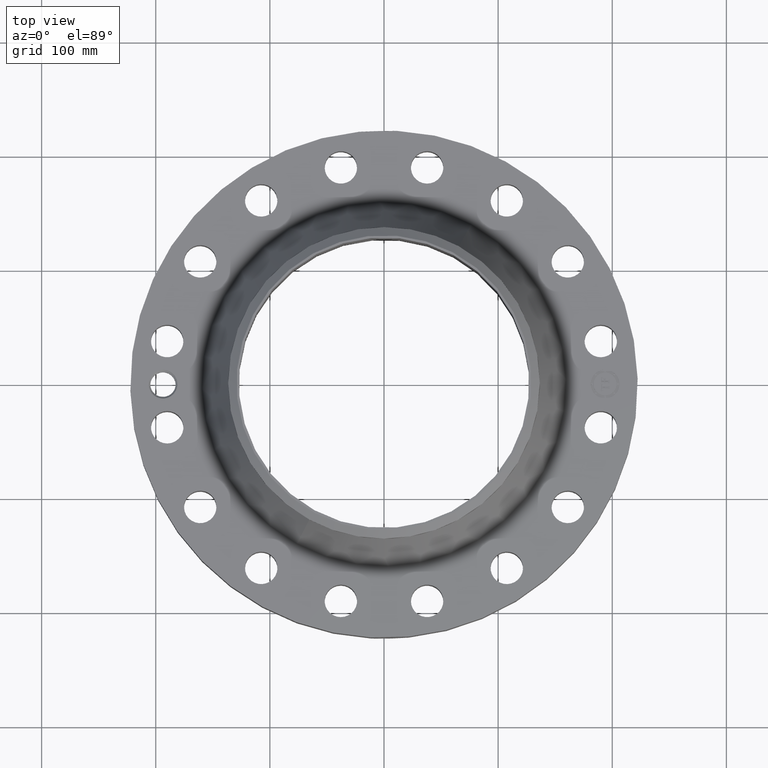
[diagram: clean part render]
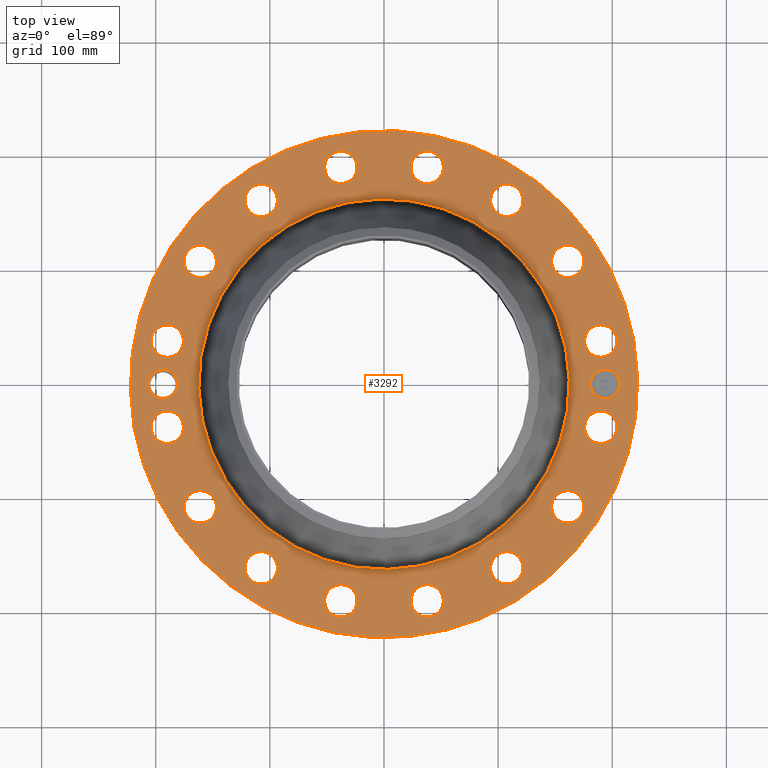
[diagram: same view with one face highlighted and labeled with its STEP entity id]
A machine part, top view. The second image highlights one B-rep face of the part: STEP entity #3292.
In plain terms, the highlighted planar face has unit normal (0, 0, -1).
Its self-contained STEP definition (entity closure, byte-faithful):
#2190=AXIS2_PLACEMENT_3D('Circle Axis2P3D',#2188,#2189,$) ;
#2216=AXIS2_PLACEMENT_3D('Circle Axis2P3D',#2214,#2215,$) ;
#2914=AXIS2_PLACEMENT_3D('Plane Axis2P3D',#2911,#2912,#2913) ;
#2918=AXIS2_PLACEMENT_3D('Circle Axis2P3D',#2916,#2917,$) ;
#2927=AXIS2_PLACEMENT_3D('Circle Axis2P3D',#2925,#2926,$) ;
#2958=AXIS2_PLACEMENT_3D('Circle Axis2P3D',#2956,#2957,$) ;
#2965=AXIS2_PLACEMENT_3D('Circle Axis2P3D',#2963,#2964,$) ;
#2972=AXIS2_PLACEMENT_3D('Circle Axis2P3D',#2970,#2971,$) ;
#2984=AXIS2_PLACEMENT_3D('Circle Axis2P3D',#2982,#2983,$) ;
#2993=AXIS2_PLACEMENT_3D('Circle Axis2P3D',#2991,#2992,$) ;
#3006=AXIS2_PLACEMENT_3D('Circle Axis2P3D',#3004,#3005,$) ;
#3015=AXIS2_PLACEMENT_3D('Circle Axis2P3D',#3013,#3014,$) ;
#3024=AXIS2_PLACEMENT_3D('Circle Axis2P3D',#3022,#3023,$) ;
#3033=AXIS2_PLACEMENT_3D('Circle Axis2P3D',#3031,#3032,$) ;
#3042=AXIS2_PLACEMENT_3D('Circle Axis2P3D',#3040,#3041,$) ;
#3051=AXIS2_PLACEMENT_3D('Circle Axis2P3D',#3049,#3050,$) ;
#3060=AXIS2_PLACEMENT_3D('Circle Axis2P3D',#3058,#3059,$) ;
#3069=AXIS2_PLACEMENT_3D('Circle Axis2P3D',#3067,#3068,$) ;
#3078=AXIS2_PLACEMENT_3D('Circle Axis2P3D',#3076,#3077,$) ;
#3087=AXIS2_PLACEMENT_3D('Circle Axis2P3D',#3085,#3086,$) ;
#3096=AXIS2_PLACEMENT_3D('Circle Axis2P3D',#3094,#3095,$) ;
#3105=AXIS2_PLACEMENT_3D('Circle Axis2P3D',#3103,#3104,$) ;
#3114=AXIS2_PLACEMENT_3D('Circle Axis2P3D',#3112,#3113,$) ;
#3123=AXIS2_PLACEMENT_3D('Circle Axis2P3D',#3121,#3122,$) ;
#3132=AXIS2_PLACEMENT_3D('Circle Axis2P3D',#3130,#3131,$) ;
#3141=AXIS2_PLACEMENT_3D('Circle Axis2P3D',#3139,#3140,$) ;
#3150=AXIS2_PLACEMENT_3D('Circle Axis2P3D',#3148,#3149,$) ;
#3159=AXIS2_PLACEMENT_3D('Circle Axis2P3D',#3157,#3158,$) ;
#3168=AXIS2_PLACEMENT_3D('Circle Axis2P3D',#3166,#3167,$) ;
#3177=AXIS2_PLACEMENT_3D('Circle Axis2P3D',#3175,#3176,$) ;
#3186=AXIS2_PLACEMENT_3D('Circle Axis2P3D',#3184,#3185,$) ;
#3195=AXIS2_PLACEMENT_3D('Circle Axis2P3D',#3193,#3194,$) ;
#3204=AXIS2_PLACEMENT_3D('Circle Axis2P3D',#3202,#3203,$) ;
#3213=AXIS2_PLACEMENT_3D('Circle Axis2P3D',#3211,#3212,$) ;
#3222=AXIS2_PLACEMENT_3D('Circle Axis2P3D',#3220,#3221,$) ;
#3231=AXIS2_PLACEMENT_3D('Circle Axis2P3D',#3229,#3230,$) ;
#3240=AXIS2_PLACEMENT_3D('Circle Axis2P3D',#3238,#3239,$) ;
#3249=AXIS2_PLACEMENT_3D('Circle Axis2P3D',#3247,#3248,$) ;
#3258=AXIS2_PLACEMENT_3D('Circle Axis2P3D',#3256,#3257,$) ;
#3267=AXIS2_PLACEMENT_3D('Circle Axis2P3D',#3265,#3266,$) ;
#3276=AXIS2_PLACEMENT_3D('Circle Axis2P3D',#3274,#3275,$) ;
#3285=AXIS2_PLACEMENT_3D('Circle Axis2P3D',#3283,#3284,$) ;
#2188=CARTESIAN_POINT('Axis2P3D Location',(0.,0.,2.19300000001)) ;
#2192=CARTESIAN_POINT('Vertex',(-3.0637895437,-5.60822914166,2.19300000001)) ;
#2194=CARTESIAN_POINT('Vertex',(3.0637895437,5.60822914166,2.19300000001)) ;
#2214=CARTESIAN_POINT('Axis2P3D Location',(0.,0.,2.19300000001)) ;
#2911=CARTESIAN_POINT('Axis2P3D Location',(0.,8.75000000003,2.19300000001)) ;
#2916=CARTESIAN_POINT('Axis2P3D Location',(0.,0.,2.19300000001)) ;
#2920=CARTESIAN_POINT('Vertex',(4.1949734628,7.67884741657,2.19300000001)) ;
#2922=CARTESIAN_POINT('Vertex',(-4.1949734628,-7.67884741657,2.19300000001)) ;
#2925=CARTESIAN_POINT('Axis2P3D Location',(0.,0.,2.19300000001)) ;
#2935=CARTESIAN_POINT('Control Point',(-7.12500000003,0.,2.19300000001)) ;
#2936=CARTESIAN_POINT('Control Point',(-7.12549933739,0.0123420310321,2.19300000001)) ;
#2937=CARTESIAN_POINT('Control Point',(-7.12637981879,0.0246614467963,2.19300000001)) ;
#2938=CARTESIAN_POINT('Control Point',(-7.1276405658,0.0369424262175,2.19300000001)) ;
#2939=CARTESIAN_POINT('Control Point',(-7.12927967572,0.0491691948842,2.19300000001)) ;
#2940=CARTESIAN_POINT('Control Point',(-7.13129426485,0.0613261531135,2.19300000001)) ;
#2941=CARTESIAN_POINT('Vertex',(-7.12500000003,0.,2.19300000001)) ;
#2943=CARTESIAN_POINT('Vertex',(-7.13129426485,0.0613261531135,2.19300000001)) ;
#2947=CARTESIAN_POINT('Control Point',(-7.12500000003,0.,2.19300000001)) ;
#2948=CARTESIAN_POINT('Control Point',(-7.12549957614,-0.0123479326712,2.19300000001)) ;
#2949=CARTESIAN_POINT('Control Point',(-7.12638066089,-0.0246732284347,2.19300000001)) ;
#2950=CARTESIAN_POINT('Control Point',(-7.12764219898,-0.0369596674079,2.19300000001)) ;
#2951=CARTESIAN_POINT('Control Point',(-7.12928214234,-0.0491911939565,2.19300000001)) ;
#2952=CARTESIAN_POINT('Control Point',(-7.13129747815,-0.0613520162046,2.19300000001)) ;
#2953=CARTESIAN_POINT('Vertex',(-7.13129747815,-0.0613520162046,2.19300000001)) ;
#2956=CARTESIAN_POINT('Axis2P3D Location',(-7.62500000003,5.59482469102E-015,2.19300000001)) ;
#2960=CARTESIAN_POINT('Vertex',(-7.18840267549,-0.238514205457,2.19300000001)) ;
#2963=CARTESIAN_POINT('Axis2P3D Location',(-7.62500000003,5.59482469102E-015,2.19300000001)) ;
#2967=CARTESIAN_POINT('Vertex',(-8.06159732457,0.238514205457,2.19300000001)) ;
#2970=CARTESIAN_POINT('Axis2P3D Location',(-7.62500000003,5.59482469102E-015,2.19300000001)) ;
#2982=CARTESIAN_POINT('Axis2P3D Location',(7.4784877631,-1.48756370538,2.19300000001)) ;
#2986=CARTESIAN_POINT('Vertex',(6.98704152844,-1.21908540376,2.19300000001)) ;
#2988=CARTESIAN_POINT('Vertex',(7.96993399777,-1.756042007,2.19300000001)) ;
#2991=CARTESIAN_POINT('Axis2P3D Location',(7.4784877631,-1.48756370538,2.19300000001)) ;
#3004=CARTESIAN_POINT('Axis2P3D Location',(6.33995579383,-4.23622302679,2.19300000001)) ;
#3008=CARTESIAN_POINT('Vertex',(6.69125071339,-4.67233296648,2.19300000001)) ;
#3010=CARTESIAN_POINT('Vertex',(5.98866087428,-3.8001130871,2.19300000001)) ;
#3013=CARTESIAN_POINT('Axis2P3D Location',(6.33995579383,-4.23622302679,2.19300000001)) ;
#3022=CARTESIAN_POINT('Axis2P3D Location',(4.23622302679,-6.33995579383,2.19300000001)) ;
#3026=CARTESIAN_POINT('Vertex',(4.39388516423,-6.87730358663,2.19300000001)) ;
#3028=CARTESIAN_POINT('Vertex',(4.07856088935,-5.80260800104,2.19300000001)) ;
#3031=CARTESIAN_POINT('Axis2P3D Location',(4.23622302679,-6.33995579383,2.19300000001)) ;
#3040=CARTESIAN_POINT('Axis2P3D Location',(1.48756370538,-7.4784877631,2.19300000001)) ;
#3044=CARTESIAN_POINT('Vertex',(1.42759042949,-8.03526707862,2.19300000001)) ;
#3046=CARTESIAN_POINT('Vertex',(1.54753698127,-6.92170844759,2.19300000001)) ;
#3049=CARTESIAN_POINT('Axis2P3D Location',(1.48756370538,-7.4784877631,2.19300000001)) ;
#3058=CARTESIAN_POINT('Axis2P3D Location',(-1.48756370538,-7.4784877631,2.19300000001)) ;
#3062=CARTESIAN_POINT('Vertex',(-1.756042007,-7.96993399777,2.19300000001)) ;
#3064=CARTESIAN_POINT('Vertex',(-1.21908540376,-6.98704152844,2.19300000001)) ;
#3067=CARTESIAN_POINT('Axis2P3D Location',(-1.48756370538,-7.4784877631,2.19300000001)) ;
#3076=CARTESIAN_POINT('Axis2P3D Location',(-4.23622302679,-6.33995579383,2.19300000001)) ;
#3080=CARTESIAN_POINT('Vertex',(-4.67233296648,-6.69125071339,2.19300000001)) ;
#3082=CARTESIAN_POINT('Vertex',(-3.8001130871,-5.98866087428,2.19300000001)) ;
#3085=CARTESIAN_POINT('Axis2P3D Location',(-4.23622302679,-6.33995579383,2.19300000001)) ;
#3094=CARTESIAN_POINT('Axis2P3D Location',(-6.33995579383,-4.23622302679,2.19300000001)) ;
#3098=CARTESIAN_POINT('Vertex',(-6.87730358663,-4.39388516423,2.19300000001)) ;
#3100=CARTESIAN_POINT('Vertex',(-5.80260800104,-4.07856088935,2.19300000001)) ;
#3103=CARTESIAN_POINT('Axis2P3D Location',(-6.33995579383,-4.23622302679,2.19300000001)) ;
#3112=CARTESIAN_POINT('Axis2P3D Location',(-7.4784877631,-1.48756370538,2.19300000001)) ;
#3116=CARTESIAN_POINT('Vertex',(-8.03526707862,-1.42759042949,2.19300000001)) ;
#3118=CARTESIAN_POINT('Vertex',(-6.92170844759,-1.54753698127,2.19300000001)) ;
#3121=CARTESIAN_POINT('Axis2P3D Location',(-7.4784877631,-1.48756370538,2.19300000001)) ;
#3130=CARTESIAN_POINT('Axis2P3D Location',(-7.4784877631,1.48756370538,2.19300000001)) ;
#3134=CARTESIAN_POINT('Vertex',(-7.96993399777,1.756042007,2.19300000001)) ;
#3136=CARTESIAN_POINT('Vertex',(-6.98704152844,1.21908540376,2.19300000001)) ;
#3139=CARTESIAN_POINT('Axis2P3D Location',(-7.4784877631,1.48756370538,2.19300000001)) ;
#3148=CARTESIAN_POINT('Axis2P3D Location',(-6.33995579383,4.23622302679,2.19300000001)) ;
#3152=CARTESIAN_POINT('Vertex',(-6.69125071339,4.67233296648,2.19300000001)) ;
#3154=CARTESIAN_POINT('Vertex',(-5.98866087428,3.8001130871,2.19300000001)) ;
#3157=CARTESIAN_POINT('Axis2P3D Location',(-6.33995579383,4.23622302679,2.19300000001)) ;
#3166=CARTESIAN_POINT('Axis2P3D Location',(-4.23622302679,6.33995579383,2.19300000001)) ;
#3170=CARTESIAN_POINT('Vertex',(-4.39388516423,6.87730358663,2.19300000001)) ;
#3172=CARTESIAN_POINT('Vertex',(-4.07856088935,5.80260800104,2.19300000001)) ;
#3175=CARTESIAN_POINT('Axis2P3D Location',(-4.23622302679,6.33995579383,2.19300000001)) ;
#3184=CARTESIAN_POINT('Axis2P3D Location',(-1.48756370538,7.4784877631,2.19300000001)) ;
#3188=CARTESIAN_POINT('Vertex',(-1.42759042949,8.03526707862,2.19300000001)) ;
#3190=CARTESIAN_POINT('Vertex',(-1.54753698127,6.92170844759,2.19300000001)) ;
#3193=CARTESIAN_POINT('Axis2P3D Location',(-1.48756370538,7.4784877631,2.19300000001)) ;
#3202=CARTESIAN_POINT('Axis2P3D Location',(1.48756370538,7.4784877631,2.19300000001)) ;
#3206=CARTESIAN_POINT('Vertex',(1.756042007,7.96993399777,2.19300000001)) ;
#3208=CARTESIAN_POINT('Vertex',(1.21908540376,6.98704152844,2.19300000001)) ;
#3211=CARTESIAN_POINT('Axis2P3D Location',(1.48756370538,7.4784877631,2.19300000001)) ;
#3220=CARTESIAN_POINT('Axis2P3D Location',(4.23622302679,6.33995579383,2.19300000001)) ;
#3224=CARTESIAN_POINT('Vertex',(4.67233296648,6.69125071339,2.19300000001)) ;
#3226=CARTESIAN_POINT('Vertex',(3.8001130871,5.98866087428,2.19300000001)) ;
#3229=CARTESIAN_POINT('Axis2P3D Location',(4.23622302679,6.33995579383,2.19300000001)) ;
#3238=CARTESIAN_POINT('Axis2P3D Location',(6.33995579383,4.23622302679,2.19300000001)) ;
#3242=CARTESIAN_POINT('Vertex',(6.87730358663,4.39388516423,2.19300000001)) ;
#3244=CARTESIAN_POINT('Vertex',(5.80260800104,4.07856088935,2.19300000001)) ;
#3247=CARTESIAN_POINT('Axis2P3D Location',(6.33995579383,4.23622302679,2.19300000001)) ;
#3256=CARTESIAN_POINT('Axis2P3D Location',(7.4784877631,1.48756370538,2.19300000001)) ;
#3260=CARTESIAN_POINT('Vertex',(8.03526707862,1.42759042949,2.19300000001)) ;
#3262=CARTESIAN_POINT('Vertex',(6.92170844759,1.54753698127,2.19300000001)) ;
#3265=CARTESIAN_POINT('Axis2P3D Location',(7.4784877631,1.48756370538,2.19300000001)) ;
#3274=CARTESIAN_POINT('Axis2P3D Location',(7.62500000003,-3.35689481461E-014,2.19300000001)) ;
#3278=CARTESIAN_POINT('Vertex',(7.62500000003,0.499999995002,2.19300000001)) ;
#3280=CARTESIAN_POINT('Vertex',(7.62500000003,-0.499999995002,2.19300000001)) ;
#3283=CARTESIAN_POINT('Axis2P3D Location',(7.62500000003,-3.35689481461E-014,2.19300000001)) ;
#2189=DIRECTION('Axis2P3D Direction',(0.,0.,-0.0393700787402)) ;
#2215=DIRECTION('Axis2P3D Direction',(0.,0.,-0.0393700787402)) ;
#2912=DIRECTION('Axis2P3D Direction',(0.,0.,-0.0393700787402)) ;
#2913=DIRECTION('Axis2P3D XDirection',(0.0393700787402,0.,0.)) ;
#2917=DIRECTION('Axis2P3D Direction',(0.,0.,-0.0393700787402)) ;
#2926=DIRECTION('Axis2P3D Direction',(0.,0.,-0.0393700787402)) ;
#2957=DIRECTION('Axis2P3D Direction',(0.,0.,-0.0393700787402)) ;
#2964=DIRECTION('Axis2P3D Direction',(0.,0.,-0.0393700787402)) ;
#2971=DIRECTION('Axis2P3D Direction',(0.,0.,-0.0393700787402)) ;
#2983=DIRECTION('Axis2P3D Direction',(0.,0.,-0.0393700787402)) ;
#2992=DIRECTION('Axis2P3D Direction',(0.,0.,-0.0393700787402)) ;
#3005=DIRECTION('Axis2P3D Direction',(0.,0.,-0.0393700787402)) ;
#3014=DIRECTION('Axis2P3D Direction',(0.,0.,-0.0393700787402)) ;
#3023=DIRECTION('Axis2P3D Direction',(0.,0.,-0.0393700787402)) ;
#3032=DIRECTION('Axis2P3D Direction',(0.,0.,-0.0393700787402)) ;
#3041=DIRECTION('Axis2P3D Direction',(0.,0.,-0.0393700787402)) ;
#3050=DIRECTION('Axis2P3D Direction',(0.,0.,-0.0393700787402)) ;
#3059=DIRECTION('Axis2P3D Direction',(0.,0.,-0.0393700787402)) ;
#3068=DIRECTION('Axis2P3D Direction',(0.,0.,-0.0393700787402)) ;
#3077=DIRECTION('Axis2P3D Direction',(0.,0.,-0.0393700787402)) ;
#3086=DIRECTION('Axis2P3D Direction',(0.,0.,-0.0393700787402)) ;
#3095=DIRECTION('Axis2P3D Direction',(0.,0.,-0.0393700787402)) ;
#3104=DIRECTION('Axis2P3D Direction',(0.,0.,-0.0393700787402)) ;
#3113=DIRECTION('Axis2P3D Direction',(0.,0.,-0.0393700787402)) ;
#3122=DIRECTION('Axis2P3D Direction',(0.,0.,-0.0393700787402)) ;
#3131=DIRECTION('Axis2P3D Direction',(0.,0.,-0.0393700787402)) ;
#3140=DIRECTION('Axis2P3D Direction',(0.,0.,-0.0393700787402)) ;
#3149=DIRECTION('Axis2P3D Direction',(0.,0.,-0.0393700787402)) ;
#3158=DIRECTION('Axis2P3D Direction',(0.,0.,-0.0393700787402)) ;
#3167=DIRECTION('Axis2P3D Direction',(0.,0.,-0.0393700787402)) ;
#3176=DIRECTION('Axis2P3D Direction',(0.,0.,-0.0393700787402)) ;
#3185=DIRECTION('Axis2P3D Direction',(0.,0.,-0.0393700787402)) ;
#3194=DIRECTION('Axis2P3D Direction',(0.,0.,-0.0393700787402)) ;
#3203=DIRECTION('Axis2P3D Direction',(0.,0.,-0.0393700787402)) ;
#3212=DIRECTION('Axis2P3D Direction',(0.,0.,-0.0393700787402)) ;
#3221=DIRECTION('Axis2P3D Direction',(0.,0.,-0.0393700787402)) ;
#3230=DIRECTION('Axis2P3D Direction',(0.,0.,-0.0393700787402)) ;
#3239=DIRECTION('Axis2P3D Direction',(0.,0.,-0.0393700787402)) ;
#3248=DIRECTION('Axis2P3D Direction',(0.,0.,-0.0393700787402)) ;
#3257=DIRECTION('Axis2P3D Direction',(0.,0.,-0.0393700787402)) ;
#3266=DIRECTION('Axis2P3D Direction',(0.,0.,-0.0393700787402)) ;
#3275=DIRECTION('Axis2P3D Direction',(0.,0.,-0.0393700787402)) ;
#3284=DIRECTION('Axis2P3D Direction',(0.,0.,-0.0393700787402)) ;
#2931=ORIENTED_EDGE('',*,*,#2924,.F.) ;
#2932=ORIENTED_EDGE('',*,*,#2929,.F.) ;
#2976=ORIENTED_EDGE('',*,*,#2945,.F.) ;
#2977=ORIENTED_EDGE('',*,*,#2955,.T.) ;
#2978=ORIENTED_EDGE('',*,*,#2962,.T.) ;
#2979=ORIENTED_EDGE('',*,*,#2969,.T.) ;
#2980=ORIENTED_EDGE('',*,*,#2974,.T.) ;
#2997=ORIENTED_EDGE('',*,*,#2990,.T.) ;
#2998=ORIENTED_EDGE('',*,*,#2995,.T.) ;
#3001=ORIENTED_EDGE('',*,*,#2196,.T.) ;
#3002=ORIENTED_EDGE('',*,*,#2218,.T.) ;
#3019=ORIENTED_EDGE('',*,*,#3012,.T.) ;
#3020=ORIENTED_EDGE('',*,*,#3017,.T.) ;
#3037=ORIENTED_EDGE('',*,*,#3030,.T.) ;
#3038=ORIENTED_EDGE('',*,*,#3035,.T.) ;
#3055=ORIENTED_EDGE('',*,*,#3048,.T.) ;
#3056=ORIENTED_EDGE('',*,*,#3053,.T.) ;
#3073=ORIENTED_EDGE('',*,*,#3066,.T.) ;
#3074=ORIENTED_EDGE('',*,*,#3071,.T.) ;
#3091=ORIENTED_EDGE('',*,*,#3084,.T.) ;
#3092=ORIENTED_EDGE('',*,*,#3089,.T.) ;
#3109=ORIENTED_EDGE('',*,*,#3102,.T.) ;
#3110=ORIENTED_EDGE('',*,*,#3107,.T.) ;
#3127=ORIENTED_EDGE('',*,*,#3120,.T.) ;
#3128=ORIENTED_EDGE('',*,*,#3125,.T.) ;
#3145=ORIENTED_EDGE('',*,*,#3138,.T.) ;
#3146=ORIENTED_EDGE('',*,*,#3143,.T.) ;
#3163=ORIENTED_EDGE('',*,*,#3156,.T.) ;
#3164=ORIENTED_EDGE('',*,*,#3161,.T.) ;
#3181=ORIENTED_EDGE('',*,*,#3174,.T.) ;
#3182=ORIENTED_EDGE('',*,*,#3179,.T.) ;
#3199=ORIENTED_EDGE('',*,*,#3192,.T.) ;
#3200=ORIENTED_EDGE('',*,*,#3197,.T.) ;
#3217=ORIENTED_EDGE('',*,*,#3210,.T.) ;
#3218=ORIENTED_EDGE('',*,*,#3215,.T.) ;
#3235=ORIENTED_EDGE('',*,*,#3228,.T.) ;
#3236=ORIENTED_EDGE('',*,*,#3233,.T.) ;
#3253=ORIENTED_EDGE('',*,*,#3246,.T.) ;
#3254=ORIENTED_EDGE('',*,*,#3251,.T.) ;
#3271=ORIENTED_EDGE('',*,*,#3264,.T.) ;
#3272=ORIENTED_EDGE('',*,*,#3269,.T.) ;
#3289=ORIENTED_EDGE('',*,*,#3282,.T.) ;
#3290=ORIENTED_EDGE('',*,*,#3287,.T.) ;
#2981=FACE_BOUND('',#2975,.T.) ;
#2999=FACE_BOUND('',#2996,.T.) ;
#3003=FACE_BOUND('',#3000,.T.) ;
#3021=FACE_BOUND('',#3018,.T.) ;
#3039=FACE_BOUND('',#3036,.T.) ;
#3057=FACE_BOUND('',#3054,.T.) ;
#3075=FACE_BOUND('',#3072,.T.) ;
#3093=FACE_BOUND('',#3090,.T.) ;
#3111=FACE_BOUND('',#3108,.T.) ;
#3129=FACE_BOUND('',#3126,.T.) ;
#3147=FACE_BOUND('',#3144,.T.) ;
#3165=FACE_BOUND('',#3162,.T.) ;
#3183=FACE_BOUND('',#3180,.T.) ;
#3201=FACE_BOUND('',#3198,.T.) ;
#3219=FACE_BOUND('',#3216,.T.) ;
#3237=FACE_BOUND('',#3234,.T.) ;
#3255=FACE_BOUND('',#3252,.T.) ;
#3273=FACE_BOUND('',#3270,.T.) ;
#3291=FACE_BOUND('',#3288,.T.) ;
#3292=ADVANCED_FACE('PartBody',(#2933,#2981,#2999,#3003,#3021,#3039,#3057,#3075,#3093,#3111,#3129,#3147,#3165,#3183,#3201,#3219,#3237,#3255,#3273,#3291),#2915,.F.) ;
#2934=B_SPLINE_CURVE_WITH_KNOTS('',5,(#2935,#2936,#2937,#2938,#2939,#2940),.UNSPECIFIED.,.F.,.U.,(6,6),(0.,2.15175300372),.UNSPECIFIED.) ;
#2946=B_SPLINE_CURVE_WITH_KNOTS('',5,(#2947,#2948,#2949,#2950,#2951,#2952),.UNSPECIFIED.,.F.,.U.,(6,6),(0.,2.15278191607),.UNSPECIFIED.) ;
#2191=CIRCLE('generated circle',#2190,6.39054304996) ;
#2217=CIRCLE('generated circle',#2216,6.39054304996) ;
#2919=CIRCLE('generated circle',#2918,8.75000000003) ;
#2928=CIRCLE('generated circle',#2927,8.75000000003) ;
#2959=CIRCLE('generated circle',#2958,0.497500000002) ;
#2966=CIRCLE('generated circle',#2965,0.497500000002) ;
#2973=CIRCLE('generated circle',#2972,0.497500000002) ;
#2985=CIRCLE('generated circle',#2984,0.560000000002) ;
#2994=CIRCLE('generated circle',#2993,0.560000000002) ;
#3007=CIRCLE('generated circle',#3006,0.560000000002) ;
#3016=CIRCLE('generated circle',#3015,0.560000000002) ;
#3025=CIRCLE('generated circle',#3024,0.560000000002) ;
#3034=CIRCLE('generated circle',#3033,0.560000000002) ;
#3043=CIRCLE('generated circle',#3042,0.560000000002) ;
#3052=CIRCLE('generated circle',#3051,0.560000000002) ;
#3061=CIRCLE('generated circle',#3060,0.560000000002) ;
#3070=CIRCLE('generated circle',#3069,0.560000000002) ;
#3079=CIRCLE('generated circle',#3078,0.560000000002) ;
#3088=CIRCLE('generated circle',#3087,0.560000000002) ;
#3097=CIRCLE('generated circle',#3096,0.560000000002) ;
#3106=CIRCLE('generated circle',#3105,0.560000000002) ;
#3115=CIRCLE('generated circle',#3114,0.560000000002) ;
#3124=CIRCLE('generated circle',#3123,0.560000000002) ;
#3133=CIRCLE('generated circle',#3132,0.560000000002) ;
#3142=CIRCLE('generated circle',#3141,0.560000000002) ;
#3151=CIRCLE('generated circle',#3150,0.560000000002) ;
#3160=CIRCLE('generated circle',#3159,0.560000000002) ;
#3169=CIRCLE('generated circle',#3168,0.560000000002) ;
#3178=CIRCLE('generated circle',#3177,0.560000000002) ;
#3187=CIRCLE('generated circle',#3186,0.560000000002) ;
#3196=CIRCLE('generated circle',#3195,0.560000000002) ;
#3205=CIRCLE('generated circle',#3204,0.560000000002) ;
#3214=CIRCLE('generated circle',#3213,0.560000000002) ;
#3223=CIRCLE('generated circle',#3222,0.560000000002) ;
#3232=CIRCLE('generated circle',#3231,0.560000000002) ;
#3241=CIRCLE('generated circle',#3240,0.560000000002) ;
#3250=CIRCLE('generated circle',#3249,0.560000000002) ;
#3259=CIRCLE('generated circle',#3258,0.560000000002) ;
#3268=CIRCLE('generated circle',#3267,0.560000000002) ;
#3277=CIRCLE('generated circle',#3276,0.499999995002) ;
#3286=CIRCLE('generated circle',#3285,0.499999995002) ;
#2196=EDGE_CURVE('',#2193,#2195,#2191,.T.) ;
#2218=EDGE_CURVE('',#2195,#2193,#2217,.T.) ;
#2924=EDGE_CURVE('',#2921,#2923,#2919,.T.) ;
#2929=EDGE_CURVE('',#2923,#2921,#2928,.T.) ;
#2945=EDGE_CURVE('',#2942,#2944,#2934,.T.) ;
#2955=EDGE_CURVE('',#2942,#2954,#2946,.T.) ;
#2962=EDGE_CURVE('',#2954,#2961,#2959,.T.) ;
#2969=EDGE_CURVE('',#2961,#2968,#2966,.T.) ;
#2974=EDGE_CURVE('',#2968,#2944,#2973,.T.) ;
#2990=EDGE_CURVE('',#2987,#2989,#2985,.T.) ;
#2995=EDGE_CURVE('',#2989,#2987,#2994,.T.) ;
#3012=EDGE_CURVE('',#3009,#3011,#3007,.T.) ;
#3017=EDGE_CURVE('',#3011,#3009,#3016,.T.) ;
#3030=EDGE_CURVE('',#3027,#3029,#3025,.T.) ;
#3035=EDGE_CURVE('',#3029,#3027,#3034,.T.) ;
#3048=EDGE_CURVE('',#3045,#3047,#3043,.T.) ;
#3053=EDGE_CURVE('',#3047,#3045,#3052,.T.) ;
#3066=EDGE_CURVE('',#3063,#3065,#3061,.T.) ;
#3071=EDGE_CURVE('',#3065,#3063,#3070,.T.) ;
#3084=EDGE_CURVE('',#3081,#3083,#3079,.T.) ;
#3089=EDGE_CURVE('',#3083,#3081,#3088,.T.) ;
#3102=EDGE_CURVE('',#3099,#3101,#3097,.T.) ;
#3107=EDGE_CURVE('',#3101,#3099,#3106,.T.) ;
#3120=EDGE_CURVE('',#3117,#3119,#3115,.T.) ;
#3125=EDGE_CURVE('',#3119,#3117,#3124,.T.) ;
#3138=EDGE_CURVE('',#3135,#3137,#3133,.T.) ;
#3143=EDGE_CURVE('',#3137,#3135,#3142,.T.) ;
#3156=EDGE_CURVE('',#3153,#3155,#3151,.T.) ;
#3161=EDGE_CURVE('',#3155,#3153,#3160,.T.) ;
#3174=EDGE_CURVE('',#3171,#3173,#3169,.T.) ;
#3179=EDGE_CURVE('',#3173,#3171,#3178,.T.) ;
#3192=EDGE_CURVE('',#3189,#3191,#3187,.T.) ;
#3197=EDGE_CURVE('',#3191,#3189,#3196,.T.) ;
#3210=EDGE_CURVE('',#3207,#3209,#3205,.T.) ;
#3215=EDGE_CURVE('',#3209,#3207,#3214,.T.) ;
#3228=EDGE_CURVE('',#3225,#3227,#3223,.T.) ;
#3233=EDGE_CURVE('',#3227,#3225,#3232,.T.) ;
#3246=EDGE_CURVE('',#3243,#3245,#3241,.T.) ;
#3251=EDGE_CURVE('',#3245,#3243,#3250,.T.) ;
#3264=EDGE_CURVE('',#3261,#3263,#3259,.T.) ;
#3269=EDGE_CURVE('',#3263,#3261,#3268,.T.) ;
#3282=EDGE_CURVE('',#3279,#3281,#3277,.T.) ;
#3287=EDGE_CURVE('',#3281,#3279,#3286,.T.) ;
#2930=EDGE_LOOP('',(#2931,#2932)) ;
#2975=EDGE_LOOP('',(#2976,#2977,#2978,#2979,#2980)) ;
#2996=EDGE_LOOP('',(#2997,#2998)) ;
#3000=EDGE_LOOP('',(#3001,#3002)) ;
#3018=EDGE_LOOP('',(#3019,#3020)) ;
#3036=EDGE_LOOP('',(#3037,#3038)) ;
#3054=EDGE_LOOP('',(#3055,#3056)) ;
#3072=EDGE_LOOP('',(#3073,#3074)) ;
#3090=EDGE_LOOP('',(#3091,#3092)) ;
#3108=EDGE_LOOP('',(#3109,#3110)) ;
#3126=EDGE_LOOP('',(#3127,#3128)) ;
#3144=EDGE_LOOP('',(#3145,#3146)) ;
#3162=EDGE_LOOP('',(#3163,#3164)) ;
#3180=EDGE_LOOP('',(#3181,#3182)) ;
#3198=EDGE_LOOP('',(#3199,#3200)) ;
#3216=EDGE_LOOP('',(#3217,#3218)) ;
#3234=EDGE_LOOP('',(#3235,#3236)) ;
#3252=EDGE_LOOP('',(#3253,#3254)) ;
#3270=EDGE_LOOP('',(#3271,#3272)) ;
#3288=EDGE_LOOP('',(#3289,#3290)) ;
#2933=FACE_OUTER_BOUND('',#2930,.T.) ;
#2915=PLANE('',#2914) ;
#2193=VERTEX_POINT('',#2192) ;
#2195=VERTEX_POINT('',#2194) ;
#2921=VERTEX_POINT('',#2920) ;
#2923=VERTEX_POINT('',#2922) ;
#2942=VERTEX_POINT('',#2941) ;
#2944=VERTEX_POINT('',#2943) ;
#2954=VERTEX_POINT('',#2953) ;
#2961=VERTEX_POINT('',#2960) ;
#2968=VERTEX_POINT('',#2967) ;
#2987=VERTEX_POINT('',#2986) ;
#2989=VERTEX_POINT('',#2988) ;
#3009=VERTEX_POINT('',#3008) ;
#3011=VERTEX_POINT('',#3010) ;
#3027=VERTEX_POINT('',#3026) ;
#3029=VERTEX_POINT('',#3028) ;
#3045=VERTEX_POINT('',#3044) ;
#3047=VERTEX_POINT('',#3046) ;
#3063=VERTEX_POINT('',#3062) ;
#3065=VERTEX_POINT('',#3064) ;
#3081=VERTEX_POINT('',#3080) ;
#3083=VERTEX_POINT('',#3082) ;
#3099=VERTEX_POINT('',#3098) ;
#3101=VERTEX_POINT('',#3100) ;
#3117=VERTEX_POINT('',#3116) ;
#3119=VERTEX_POINT('',#3118) ;
#3135=VERTEX_POINT('',#3134) ;
#3137=VERTEX_POINT('',#3136) ;
#3153=VERTEX_POINT('',#3152) ;
#3155=VERTEX_POINT('',#3154) ;
#3171=VERTEX_POINT('',#3170) ;
#3173=VERTEX_POINT('',#3172) ;
#3189=VERTEX_POINT('',#3188) ;
#3191=VERTEX_POINT('',#3190) ;
#3207=VERTEX_POINT('',#3206) ;
#3209=VERTEX_POINT('',#3208) ;
#3225=VERTEX_POINT('',#3224) ;
#3227=VERTEX_POINT('',#3226) ;
#3243=VERTEX_POINT('',#3242) ;
#3245=VERTEX_POINT('',#3244) ;
#3261=VERTEX_POINT('',#3260) ;
#3263=VERTEX_POINT('',#3262) ;
#3279=VERTEX_POINT('',#3278) ;
#3281=VERTEX_POINT('',#3280) ;